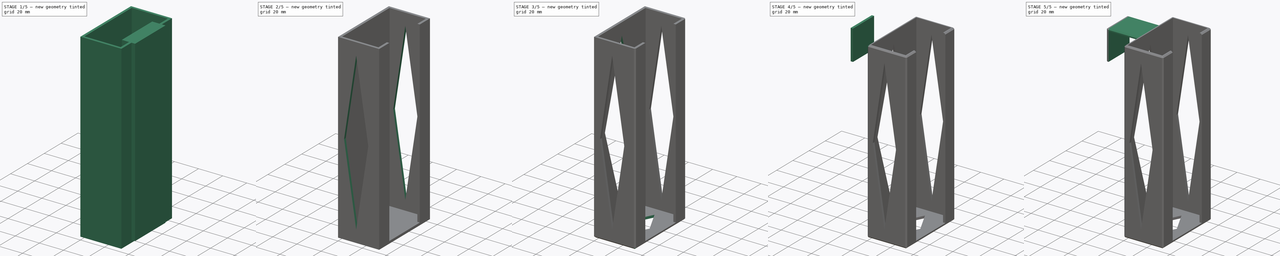
[diagram: build sequence overview — one tinted view per stage of 5, left to right]
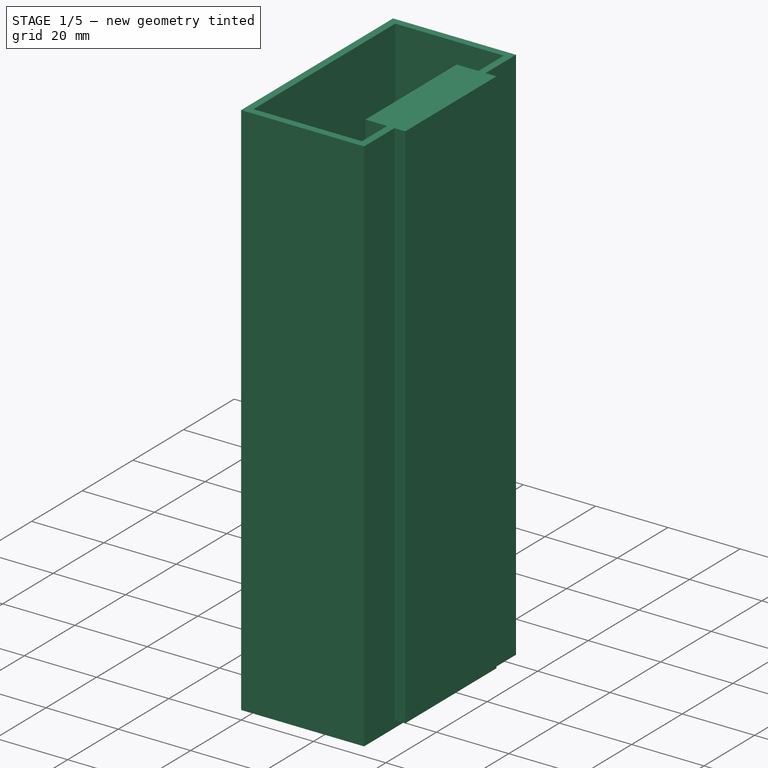
[diagram: stage 1 of 5 — iso view after this stage's code; geometry added in this stage tinted green]
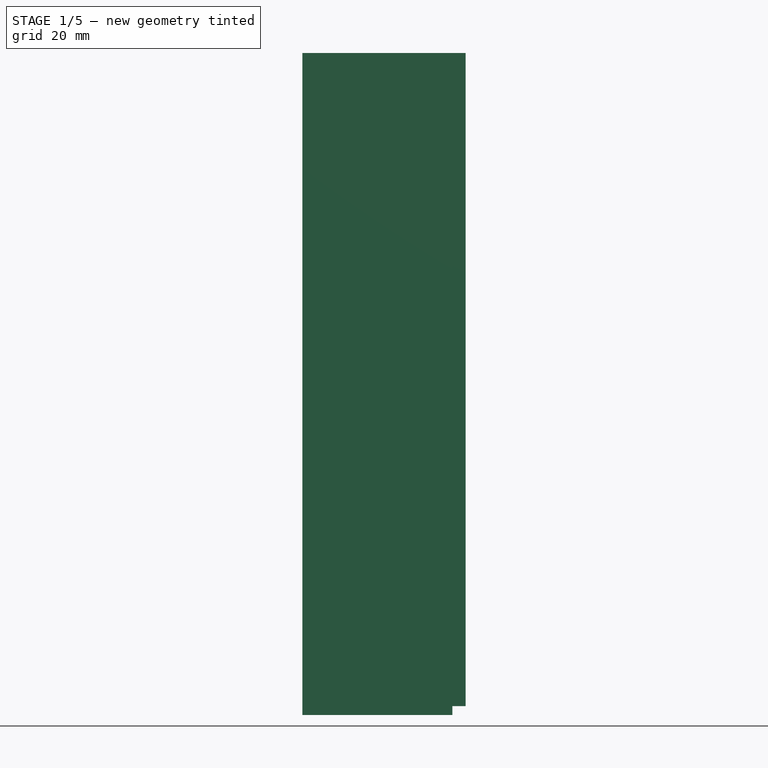
[diagram: stage 1 of 5 — front view after this stage's code; geometry added in this stage tinted green]
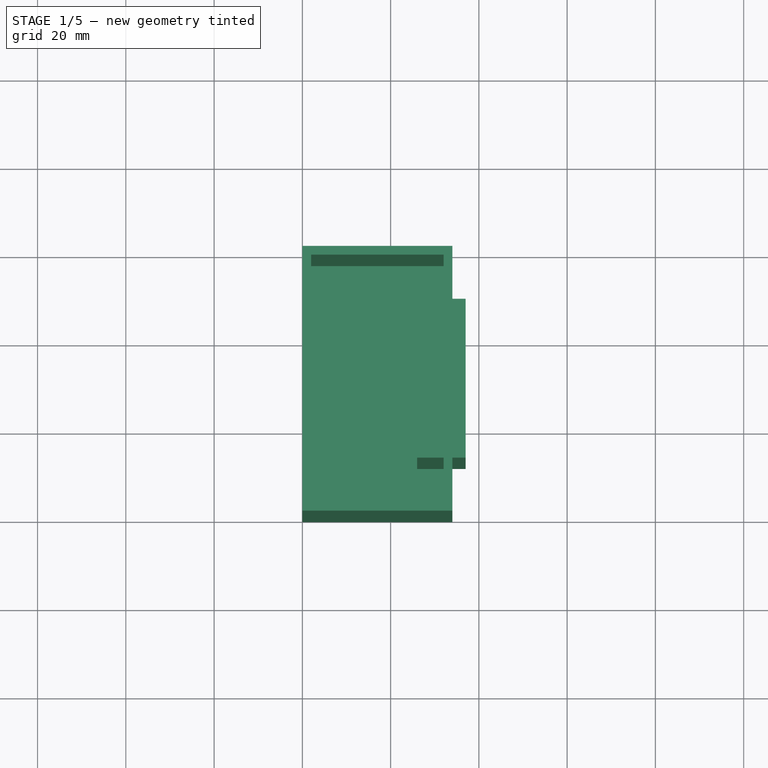
[diagram: stage 1 of 5 — top view after this stage's code; geometry added in this stage tinted green]
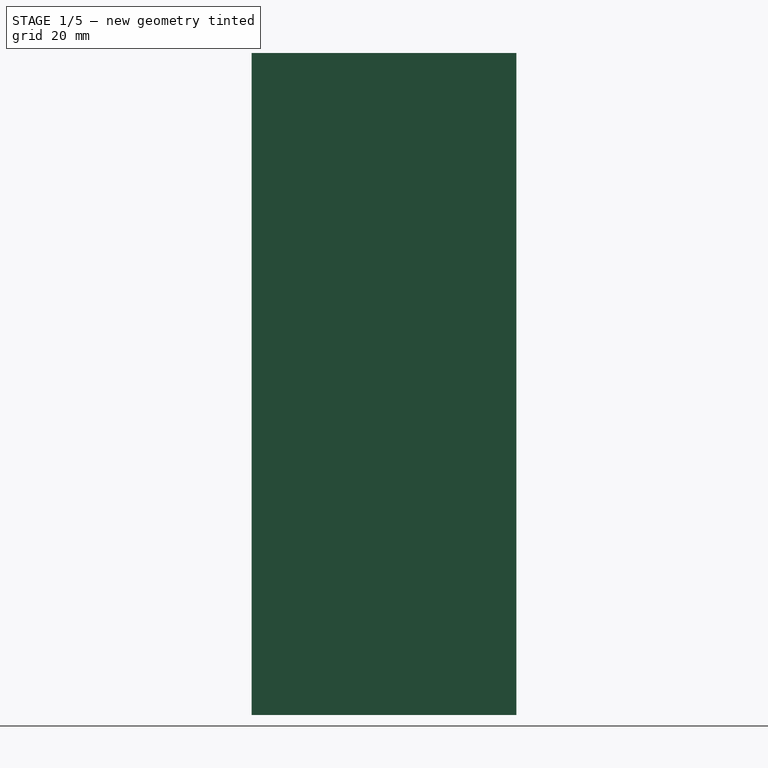
[diagram: stage 1 of 5 — right view after this stage's code; geometry added in this stage tinted green]
FCSTD DOCUMENT  (FreeCAD 0.14R3702 (Git))
Label: bed-remote-holder
License: CC-BY 3.0
LicenseURL: http://creativecommons.org/licenses/by/3.0/
objects: Part::Chamfer×6, Part::Box×5, Part::Cut×3, Sketcher::SketchObject×3, PartDesign::Pocket×2, Part::MultiFuse×1, Part::Extrusion×1
note: 23 computed .brp shape members not serialized (recipe doc carries the construction recipe); baked Part::Feature solids carry a one-line shape summary decoded from their .brp

FEATURE [Part::Box] Box  label="outside-cup"
  Height = 150
  Length = 34
  Width = 60
FEATURE [Part::Box] Box002  label="inside-cup"
  Height = 148
  Length = 30
  Placement = pos=(2,2,2) rot=(0,0,1;0rad)
  Width = 56
FEATURE [Part::Cut] Cut  label="cup"
  Base = -> Box
  Tool = -> Box002
FEATURE [Part::Box] Box005  label="inside-cup001"
  Height = 148
  Length = 11
  Placement = pos=(26,12,2) rot=(0,0,1;0rad)
  Width = 36
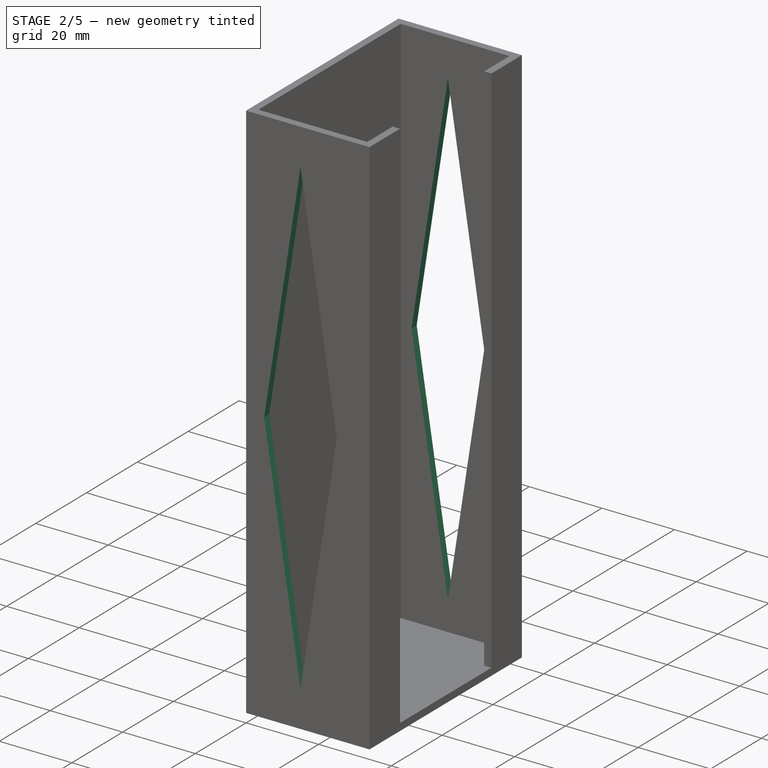
[diagram: stage 2 of 5 — iso view after this stage's code; geometry added in this stage tinted green]
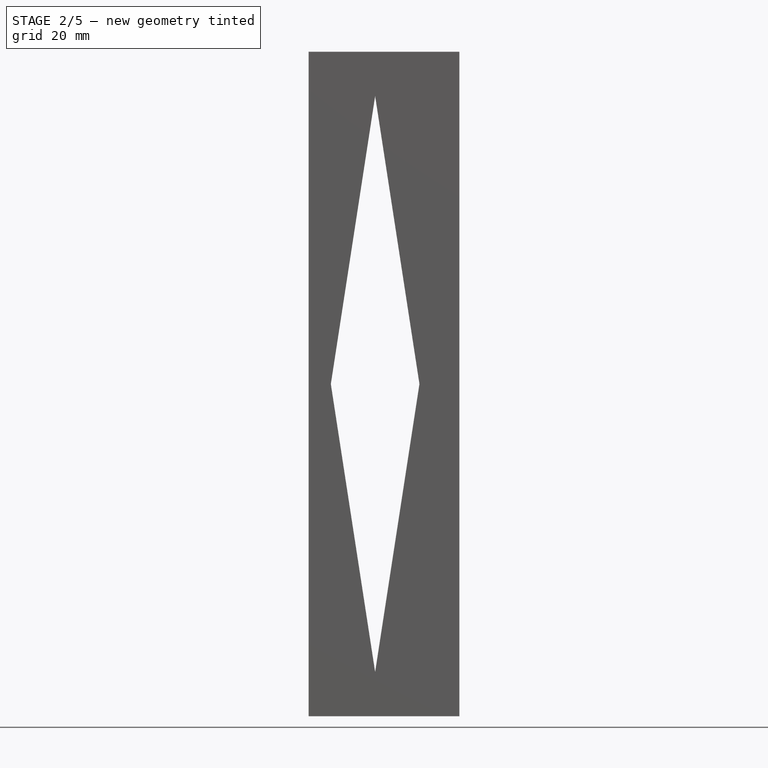
[diagram: stage 2 of 5 — front view after this stage's code; geometry added in this stage tinted green]
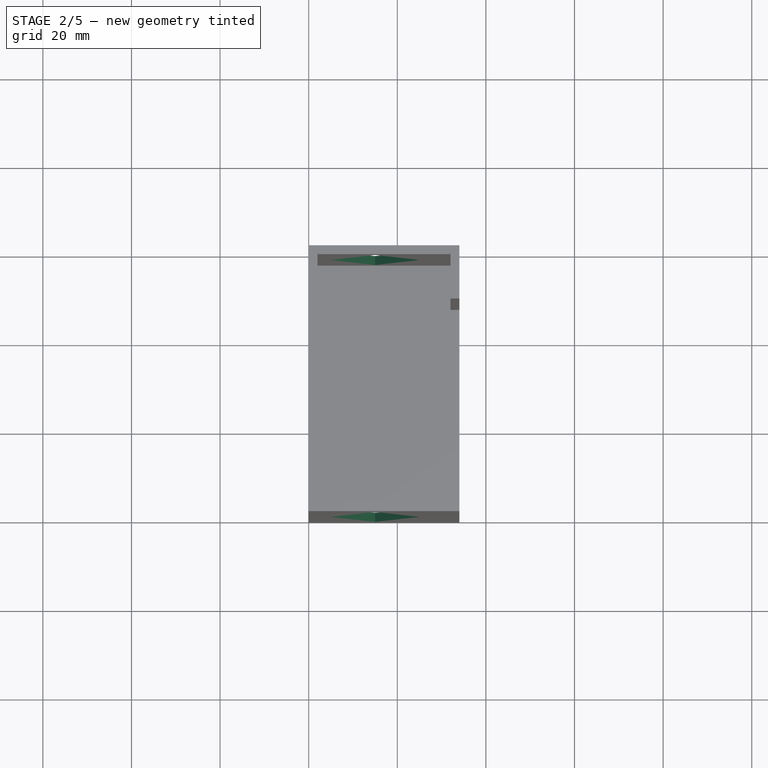
[diagram: stage 2 of 5 — top view after this stage's code; geometry added in this stage tinted green]
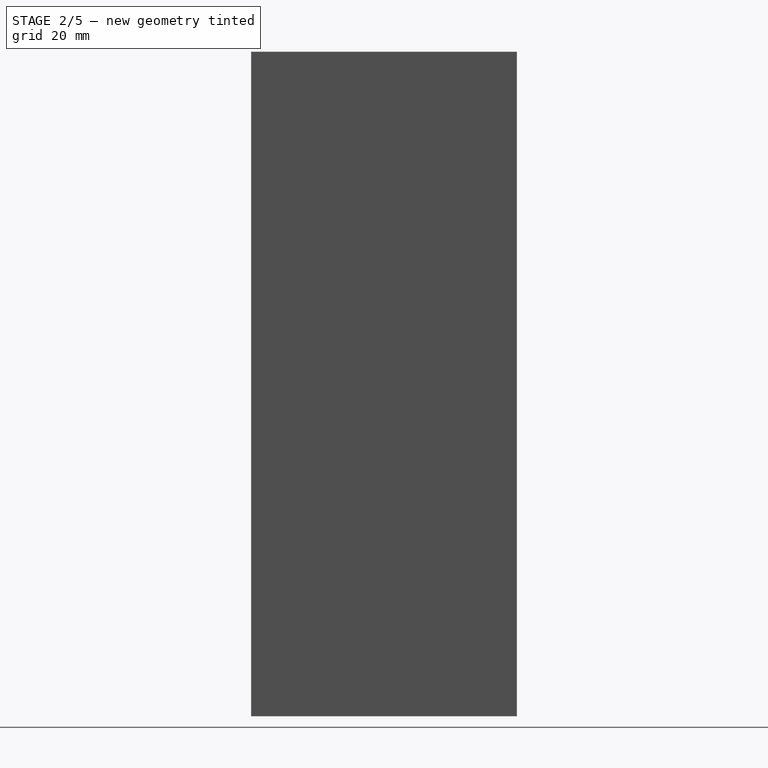
[diagram: stage 2 of 5 — right view after this stage's code; geometry added in this stage tinted green]
FEATURE [Part::Cut] Cut001  label="cup with front cut"
  Base = -> Cut
  Tool = -> Box005
FEATURE [Sketcher::SketchObject] Sketch  label="side-cut-sketch"
  Placement = pos=(0,0,0) rot=(1,0,0;1.5708rad)
  Support = -> Cut001 [Face2]
  sketch-geometry (4):
    g0: LineSegment StartX=15 StartY=140 StartZ=0 EndX=25 EndY=75 EndZ=0
    g1: LineSegment StartX=25 StartY=75 StartZ=0 EndX=15 EndY=10 EndZ=0
    g2: LineSegment StartX=15 StartY=10 StartZ=0 EndX=5 EndY=75 EndZ=0
    g3: LineSegment StartX=5 StartY=75 StartZ=0 EndX=15 EndY=140 EndZ=0
  constraints (3):
    c: Coincident(g0,g1)
    c: Coincident(g1,g2)
    c: Coincident(g2,g3)
FEATURE [Part::Extrusion] Extrude
  Base = -> Sketch
  Dir = (0,90,0)
  Placement = pos=(0,-11,0) rot=(0,0,1;0rad)
  Solid = true
FEATURE [Part::Cut] Cut002  label="cup with side cuts"
  Base = -> Cut001
  Tool = -> Extrude
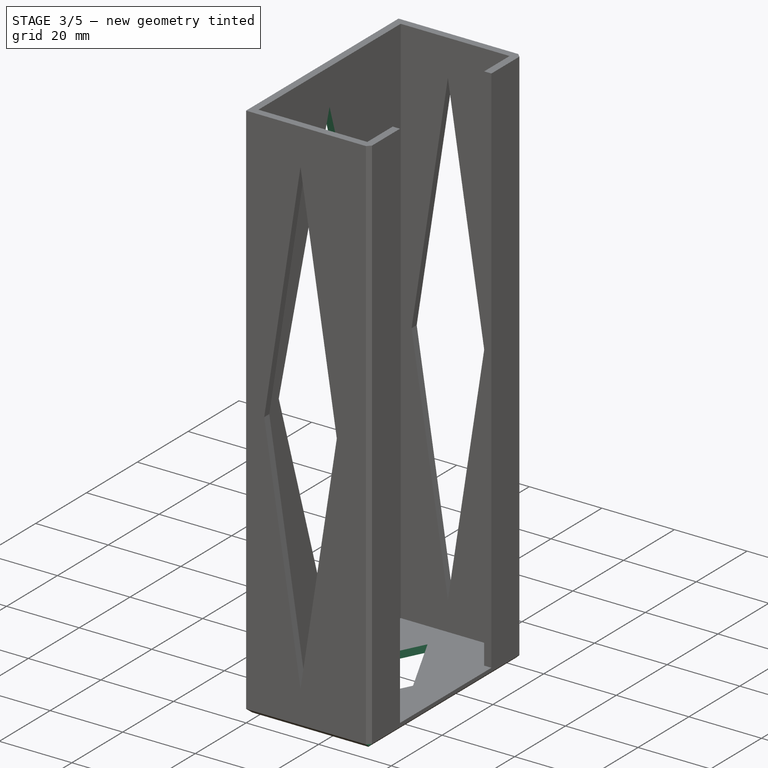
[diagram: stage 3 of 5 — iso view after this stage's code; geometry added in this stage tinted green]
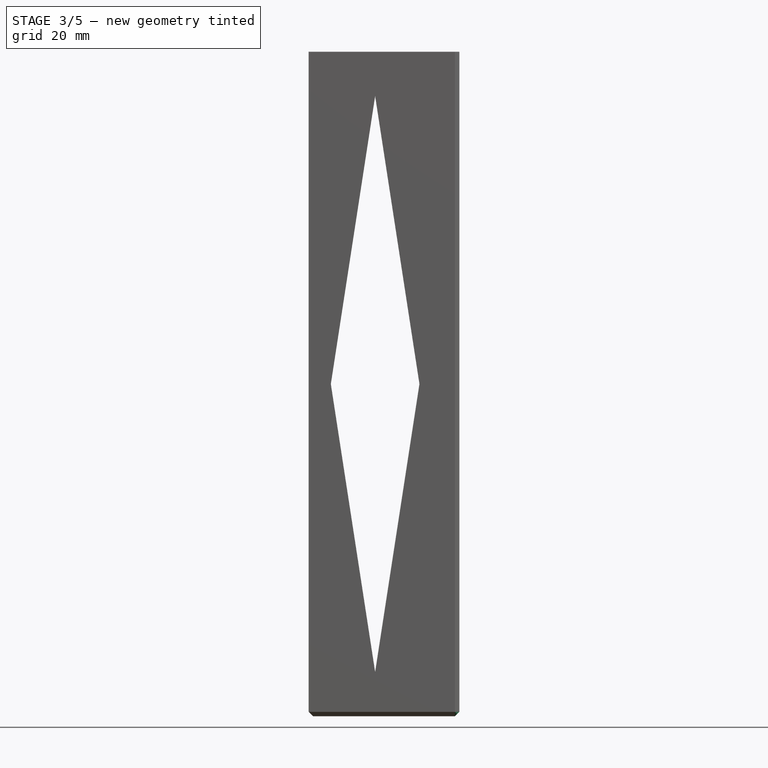
[diagram: stage 3 of 5 — front view after this stage's code; geometry added in this stage tinted green]
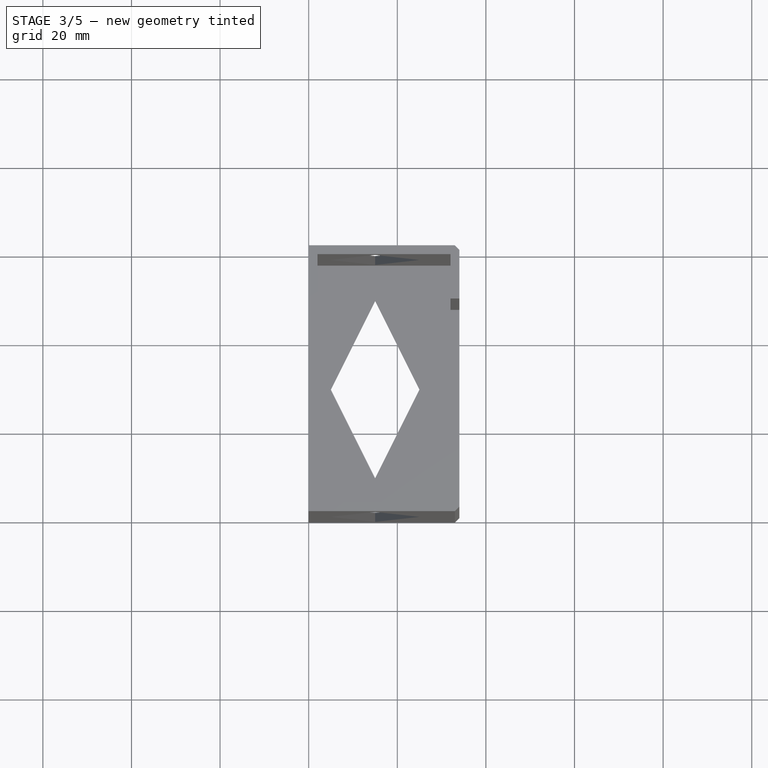
[diagram: stage 3 of 5 — top view after this stage's code; geometry added in this stage tinted green]
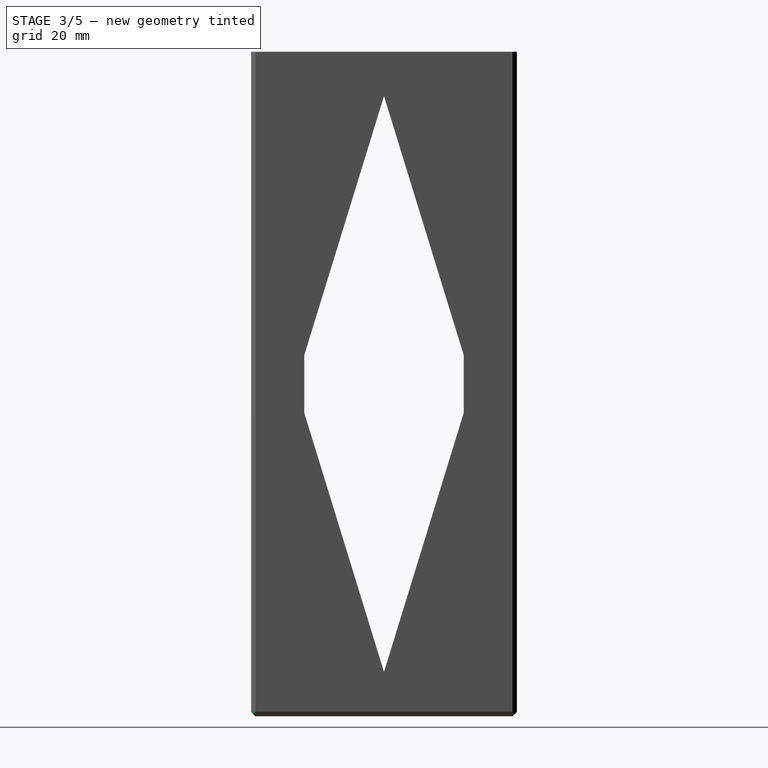
[diagram: stage 3 of 5 — right view after this stage's code; geometry added in this stage tinted green]
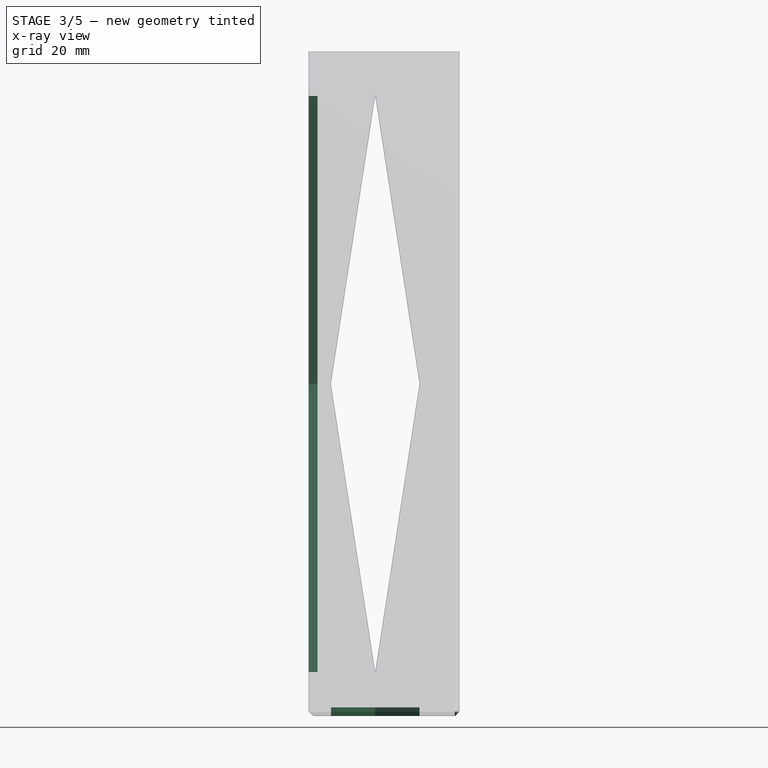
[diagram: stage 3 of 5 — x-ray composite at the front view; earlier geometry ghosted, this stage's added geometry solid]
FEATURE [Sketcher::SketchObject] Sketch001
  Placement = pos=(0,0,0) rot=(0.57735,-0.57735,-0.57735;2.0944rad)
  Support = -> Cut002 [Face1]
  sketch-geometry (4):
    g0: LineSegment StartX=-30 StartY=140 StartZ=0 EndX=-10 EndY=75 EndZ=0
    g1: LineSegment StartX=-10 StartY=75 StartZ=0 EndX=-30 EndY=10 EndZ=0
    g2: LineSegment StartX=-30 StartY=10 StartZ=0 EndX=-50 EndY=75 EndZ=0
    g3: LineSegment StartX=-50 StartY=75 StartZ=0 EndX=-30 EndY=140 EndZ=0
  constraints (3):
    c: Coincident(g0,g1)
    c: Coincident(g1,g2)
    c: Coincident(g2,g3)
FEATURE [PartDesign::Pocket] Pocket  label="Back pocket"
  Length = 5
  Sketch = -> Sketch001
  Type = 0
FEATURE [Sketcher::SketchObject] Sketch002
  Placement = pos=(0,0,0) rot=(1,0,0;3.14159rad)
  Support = -> Pocket [Face4]
  sketch-geometry (4):
    g0: LineSegment StartX=15 StartY=-10 StartZ=0 EndX=25 EndY=-30 EndZ=0
    g1: LineSegment StartX=25 StartY=-30 StartZ=0 EndX=15 EndY=-50 EndZ=0
    g2: LineSegment StartX=15 StartY=-50 StartZ=0 EndX=5 EndY=-30 EndZ=0
    g3: LineSegment StartX=5 StartY=-30 StartZ=0 EndX=15 EndY=-10 EndZ=0
  constraints (4):
    c: Coincident(g0,g1)
    c: Coincident(g1,g2)
    c: Coincident(g2,g3)
    c: Coincident(g3,g0)
FEATURE [PartDesign::Pocket] Pocket001  label="Bottom pocket"
  Length = 5
  Sketch = -> Sketch002
  Type = 0
FEATURE [Part::Chamfer] Chamfer
  Base = -> Pocket001
  Edges = 4 edges r=1: [Edge3,Edge9,Edge26,Edge27]
FEATURE [Part::Chamfer] Chamfer001
  Base = -> Chamfer
  Edges = 2 edges r=1: [Edge9,Edge29]
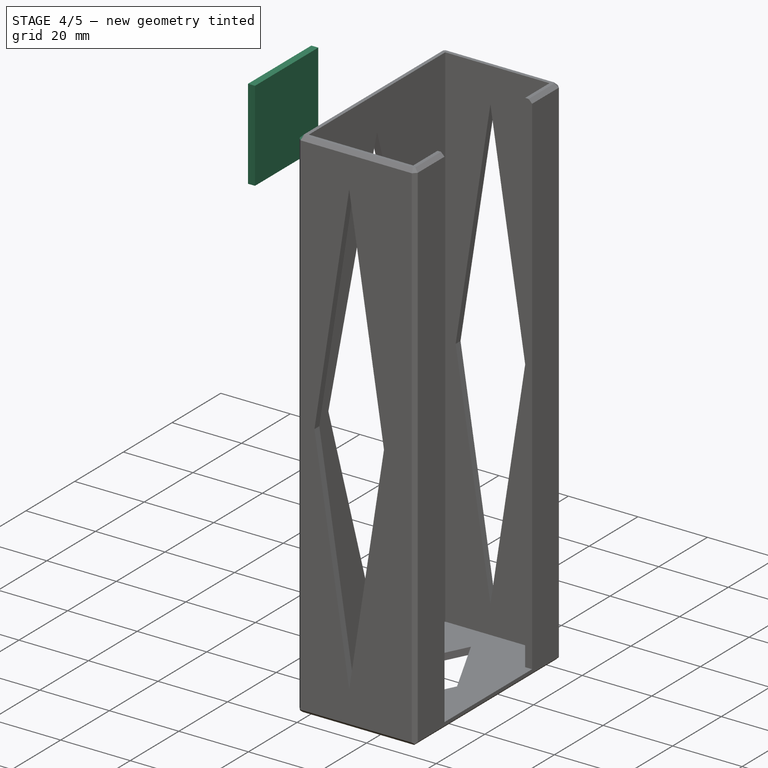
[diagram: stage 4 of 5 — iso view after this stage's code; geometry added in this stage tinted green]
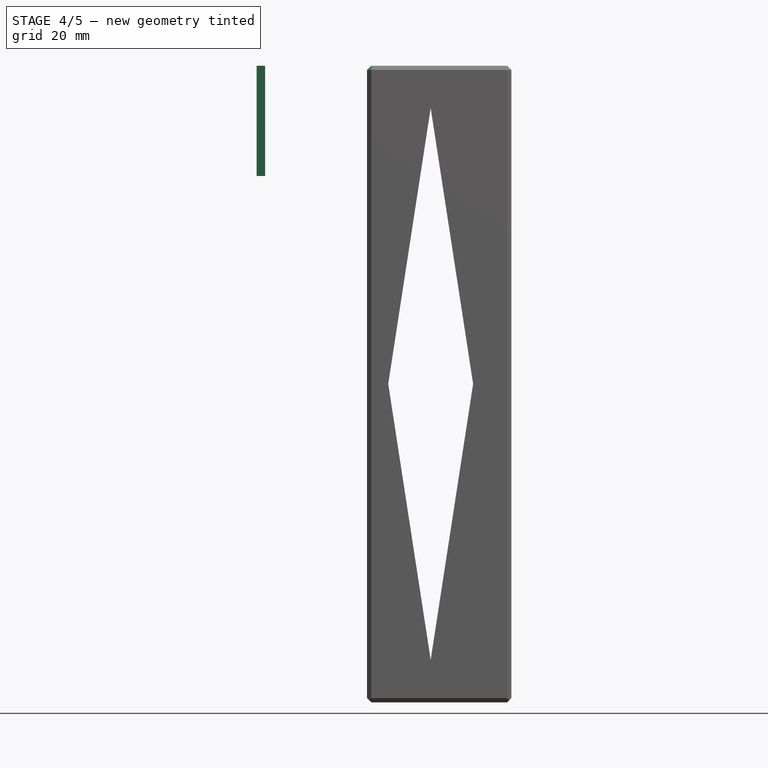
[diagram: stage 4 of 5 — front view after this stage's code; geometry added in this stage tinted green]
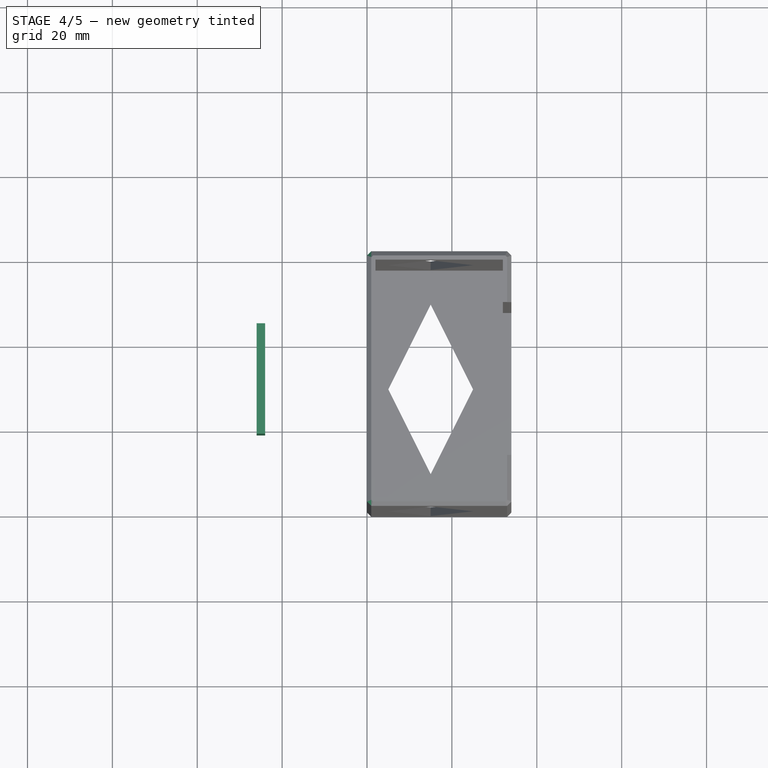
[diagram: stage 4 of 5 — top view after this stage's code; geometry added in this stage tinted green]
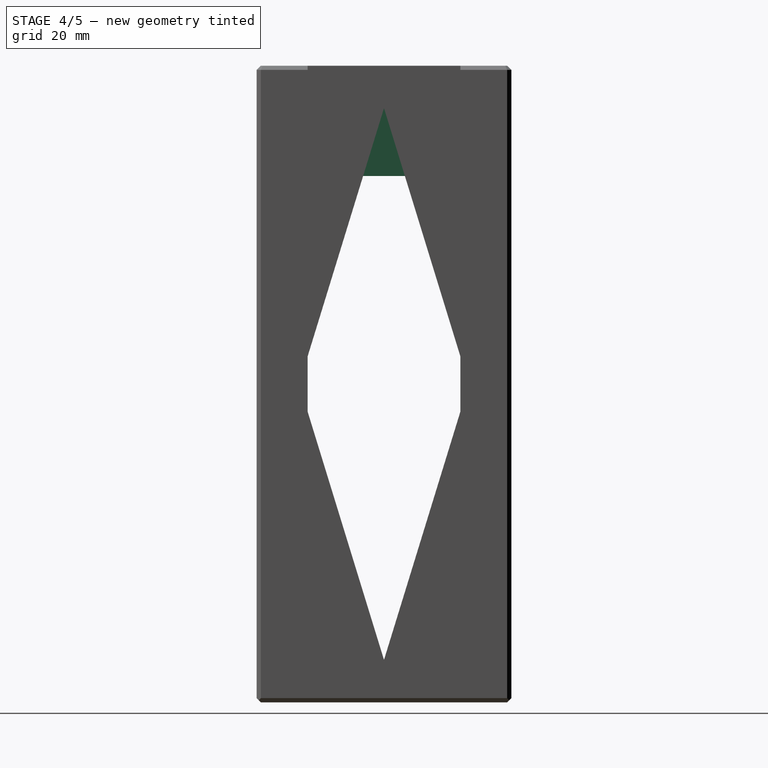
[diagram: stage 4 of 5 — right view after this stage's code; geometry added in this stage tinted green]
FEATURE [Part::Box] Box004  label="handle vertical"
  Height = 26
  Length = 2
  Placement = pos=(-26,17,124) rot=(0,0,1;0rad)
  Width = 26
FEATURE [Part::Chamfer] Chamfer002
  Base = -> Chamfer001
  Edges = 2 edges r=1: [Edge3,Edge18]
FEATURE [Part::Chamfer] Chamfer005
  Base = -> Chamfer002
  Edges = 9 edges r=1: [Edge4,Edge15,Edge18,Edge20,Edge21,Edge22,Edge23,Edge24,Edge28]
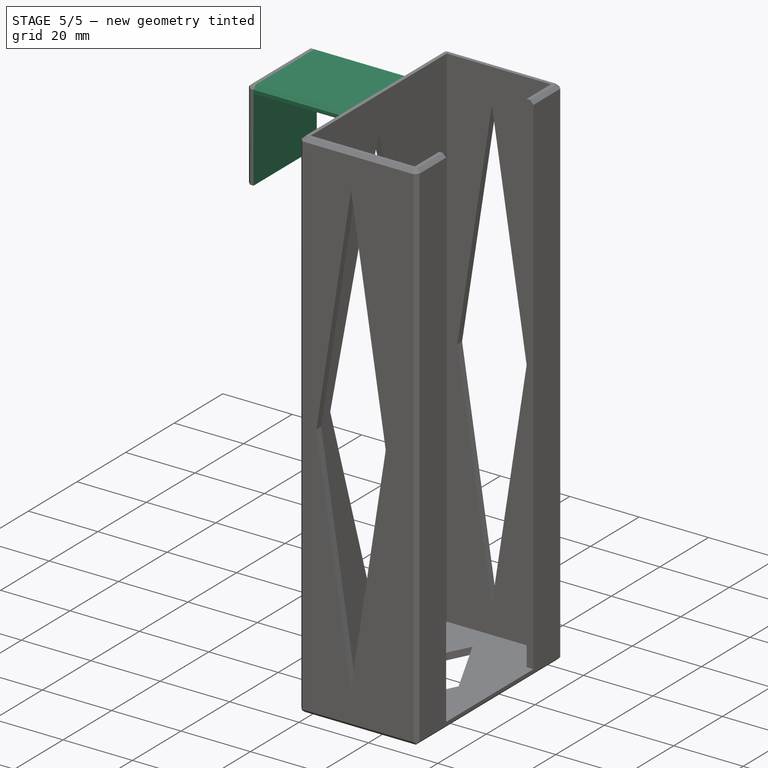
[diagram: stage 5 of 5 — iso view after this stage's code; geometry added in this stage tinted green]
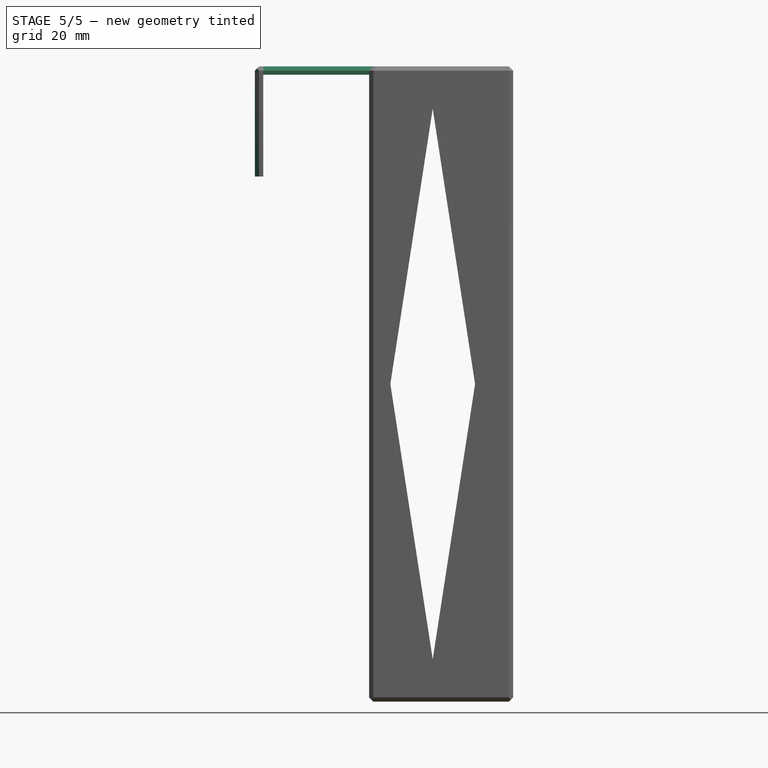
[diagram: stage 5 of 5 — front view after this stage's code; geometry added in this stage tinted green]
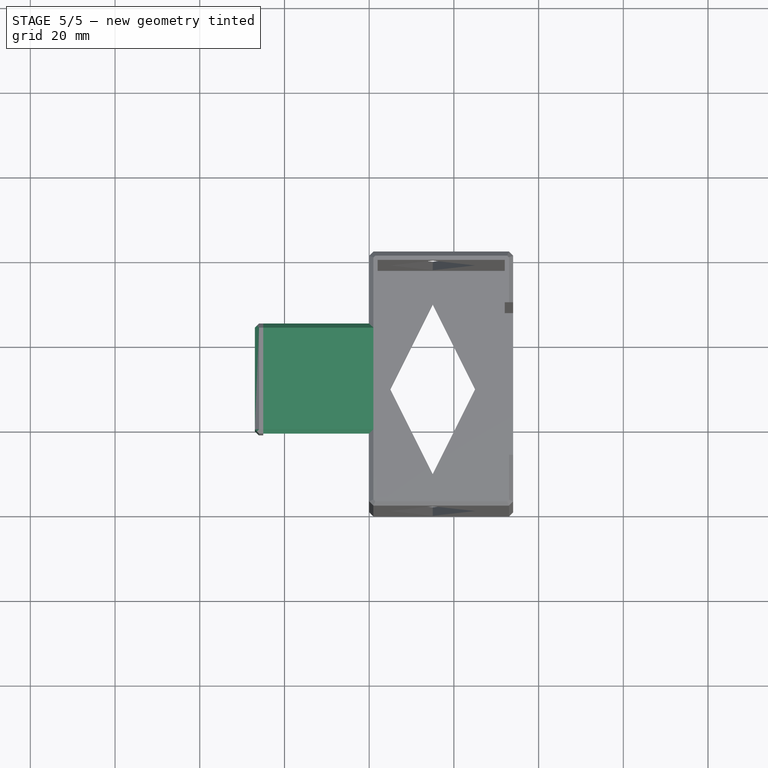
[diagram: stage 5 of 5 — top view after this stage's code; geometry added in this stage tinted green]
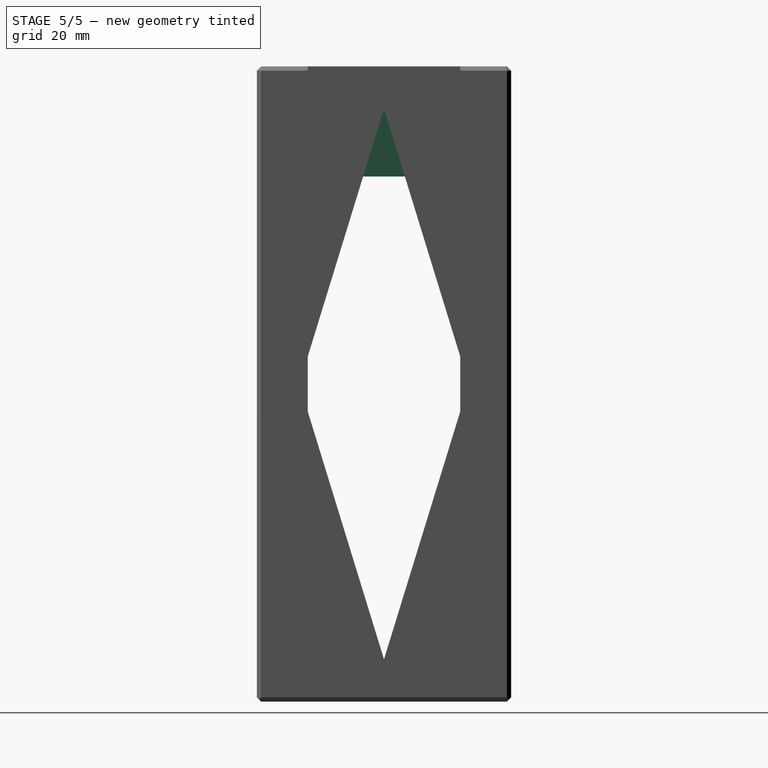
[diagram: stage 5 of 5 — right view after this stage's code; geometry added in this stage tinted green]
FEATURE [Part::Box] Box003  label="handle horisontal"
  Height = 2
  Length = 28
  Placement = pos=(-26,17,148) rot=(0,0,1;0rad)
  Width = 26
FEATURE [Part::MultiFuse] Fusion  label="handle"
  Placement = pos=(-1,0,0) rot=(0,0,1;0rad)
  Shapes = -> [Box004,Box003]
FEATURE [Part::Chamfer] Chamfer003
  Base = -> Fusion
  Edges = 5 edges r=1: [Edge14,Edge17,Edge22,Edge25,Edge28]
FEATURE [Part::Chamfer] Chamfer004
  Base = -> Chamfer003
  Edges = 4 edges r=1: [Edge1,Edge4,Edge11,Edge12]
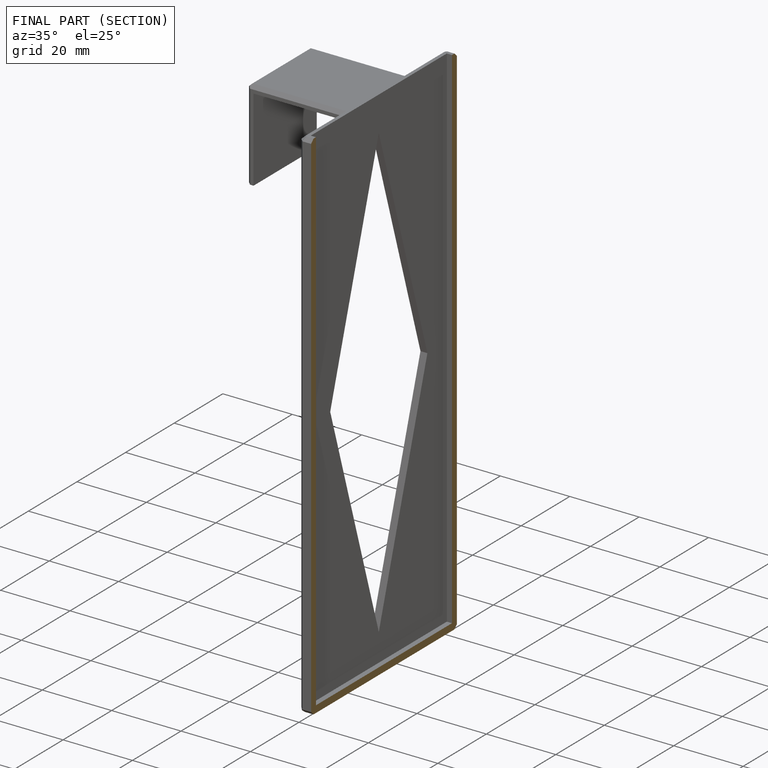
[diagram: finished part — half-section view (interior)]
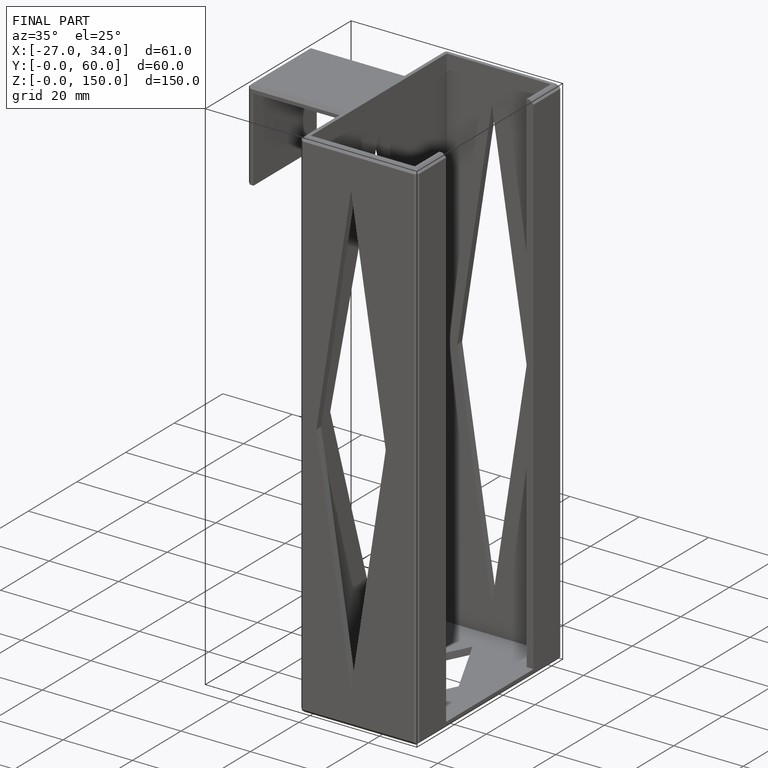
[diagram: finished part — iso view with bounding-box wireframe]
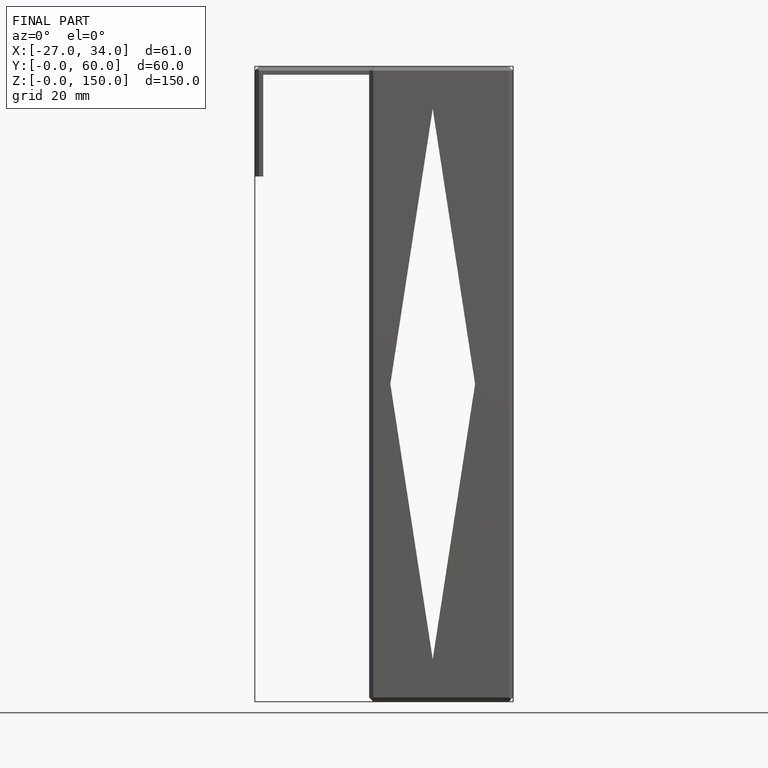
[diagram: finished part — front view with bounding-box wireframe]
